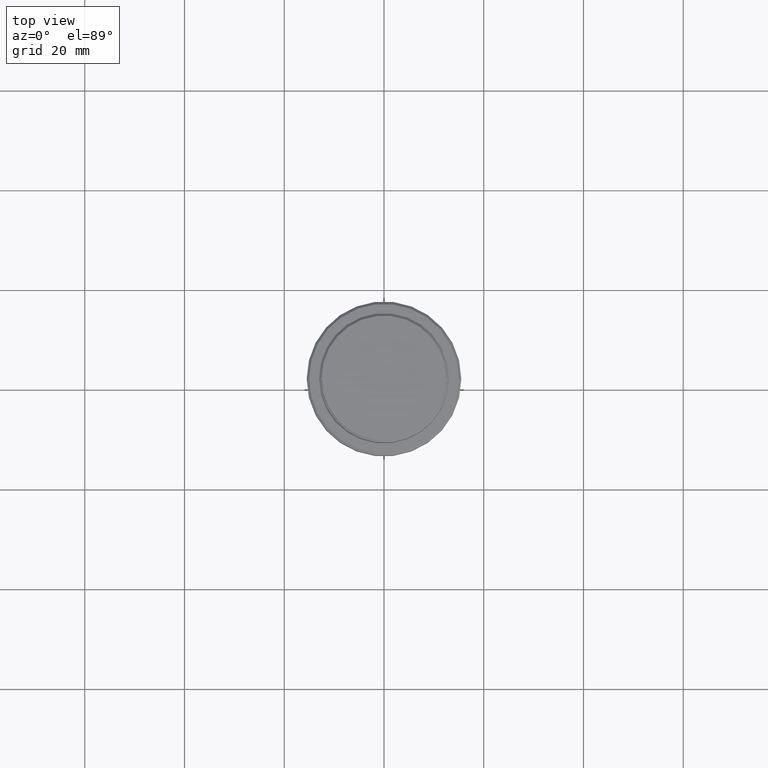
[diagram: clean part render]
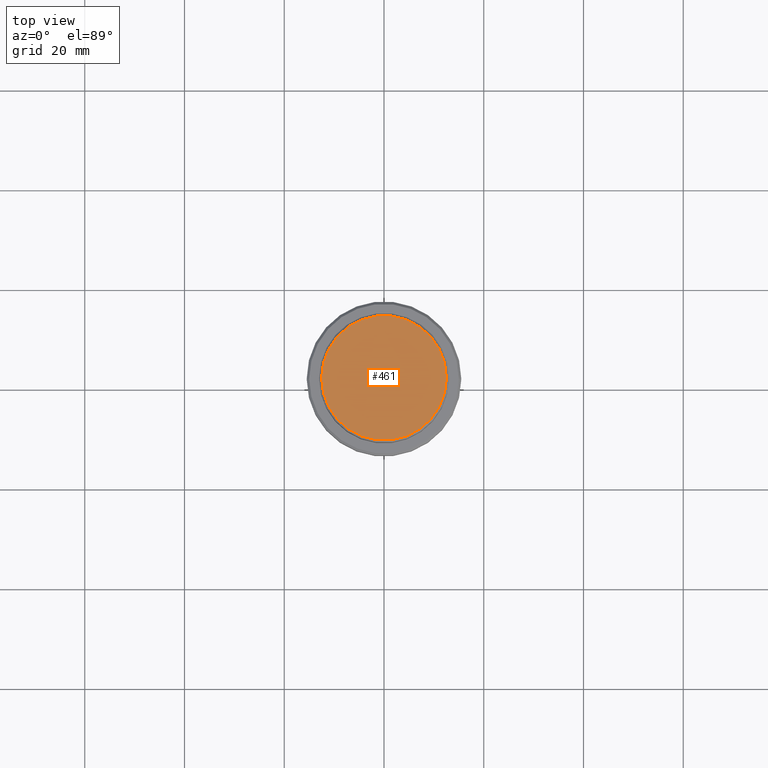
[diagram: same view with one face highlighted and labeled with its STEP entity id]
A machine part, top view. The second image highlights one B-rep face of the part: STEP entity #461.
In plain terms, the highlighted planar face has unit normal (0, -0, 1).
Its self-contained STEP definition (entity closure, byte-faithful):
#44 = CARTESIAN_POINT ( 'NONE',  ( 0.000000000000000000, 0.000000000000000000, 0.000000000000000000 ) ) ;
#136 = CARTESIAN_POINT ( 'NONE',  ( 0.000000000000000000, 0.000000000000000000, 0.000000000000000000 ) ) ;
#253 = CIRCLE ( 'NONE', #578, 12.50000000000001243 ) ;
#283 = VERTEX_POINT ( 'NONE', #1405 ) ;
#286 = VERTEX_POINT ( 'NONE', #868 ) ;
#434 = EDGE_CURVE ( 'NONE', #286, #283, #1319, .T. ) ;
#461 = ADVANCED_FACE ( 'NONE', ( #851 ), #584, .T. ) ;
#473 = DIRECTION ( 'NONE',  ( 0.000000000000000000, -0.000000000000000000, 1.000000000000000000 ) ) ;
#525 = EDGE_CURVE ( 'NONE', #283, #286, #253, .T. ) ;
#578 = AXIS2_PLACEMENT_3D ( 'NONE', #1301, #1415, #888 ) ;
#579 = DIRECTION ( 'NONE',  ( -0.000000000000000000, -0.000000000000000000, 1.000000000000000000 ) ) ;
#584 = PLANE ( 'NONE',  #800 ) ;
#694 = AXIS2_PLACEMENT_3D ( 'NONE', #136, #579, #1038 ) ;
#800 = AXIS2_PLACEMENT_3D ( 'NONE', #44, #473, #937 ) ;
#851 = FACE_OUTER_BOUND ( 'NONE', #907, .T. ) ;
#868 = CARTESIAN_POINT ( 'NONE',  ( -12.50000000000001243, 0.000000000000000000, 0.000000000000000000 ) ) ;
#888 = DIRECTION ( 'NONE',  ( 1.000000000000000000, 0.000000000000000000, 0.000000000000000000 ) ) ;
#907 = EDGE_LOOP ( 'NONE', ( #1259, #1292 ) ) ;
#937 = DIRECTION ( 'NONE',  ( 1.000000000000000000, 0.000000000000000000, 0.000000000000000000 ) ) ;
#1038 = DIRECTION ( 'NONE',  ( 1.000000000000000000, 0.000000000000000000, 0.000000000000000000 ) ) ;
#1259 = ORIENTED_EDGE ( 'NONE', *, *, #434, .T. ) ;
#1292 = ORIENTED_EDGE ( 'NONE', *, *, #525, .T. ) ;
#1301 = CARTESIAN_POINT ( 'NONE',  ( 0.000000000000000000, 0.000000000000000000, 0.000000000000000000 ) ) ;
#1319 = CIRCLE ( 'NONE', #694, 12.50000000000001243 ) ;
#1405 = CARTESIAN_POINT ( 'NONE',  ( 12.50000000000001243, 1.561424668912876097E-15, 0.000000000000000000 ) ) ;
#1415 = DIRECTION ( 'NONE',  ( -0.000000000000000000, -0.000000000000000000, 1.000000000000000000 ) ) ;